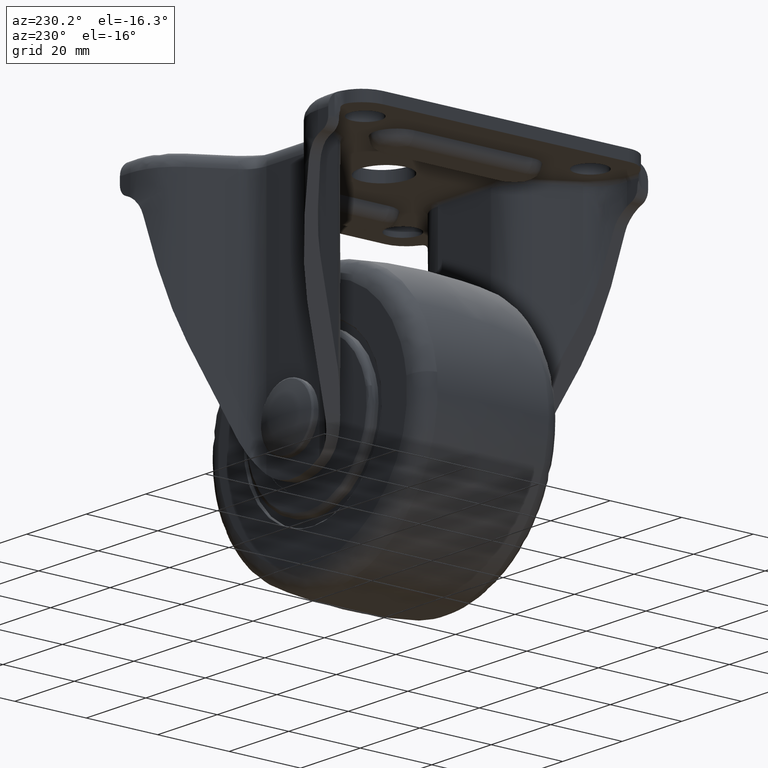
[diagram: clean part render]
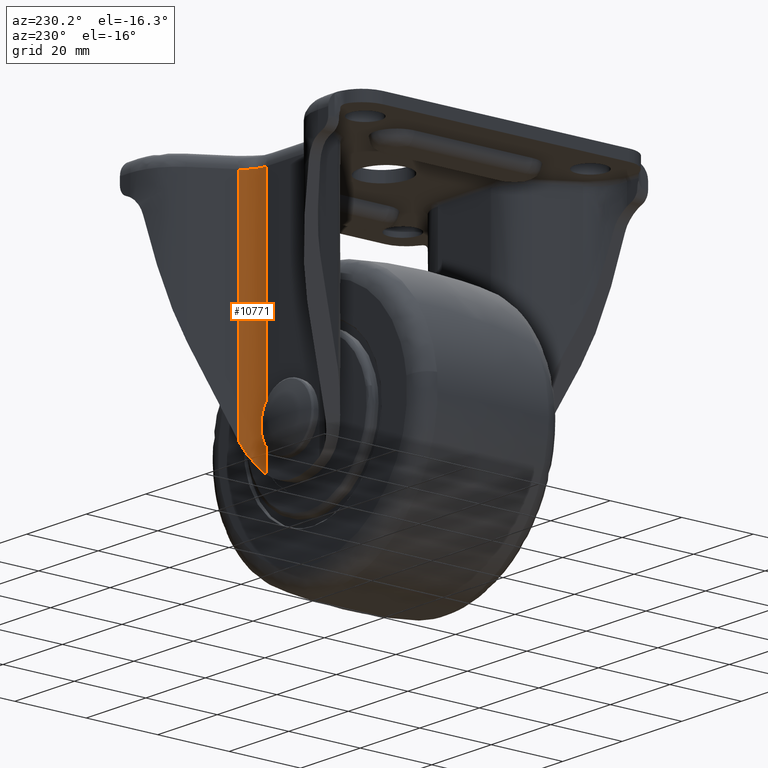
[diagram: same view with one face highlighted and labeled with its STEP entity id]
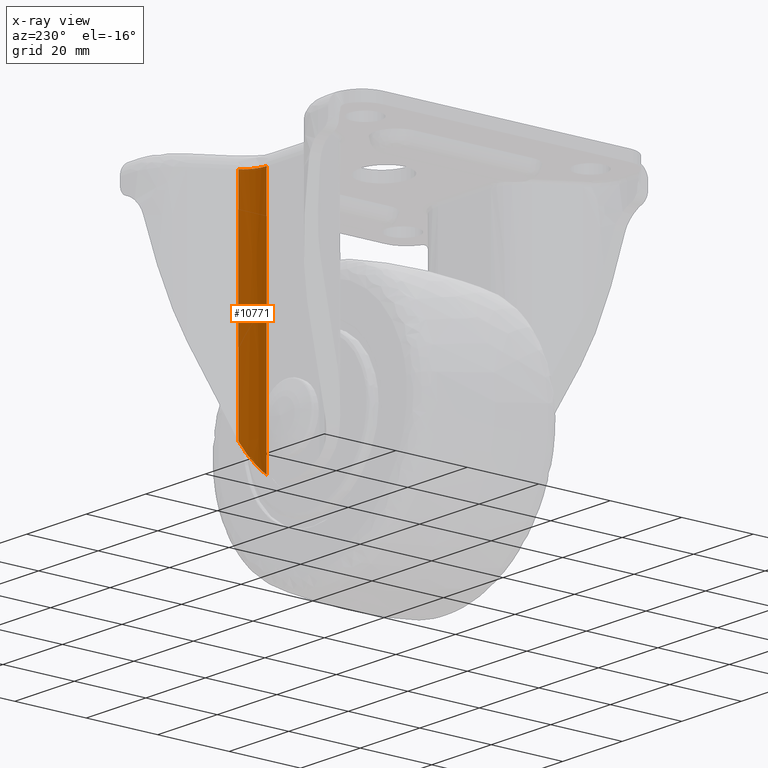
[diagram: x-ray of the same camera — body ghosted, the highlighted face saturated]
A machine part, auxiliary view. The second image highlights one B-rep face of the part: STEP entity #10771.
The next image is the same camera in x-ray: the body ghosted, the highlighted face saturated — about 0% of this face is hidden behind the body in this view.
In plain terms, the highlighted face is a freeform B-spline surface patch.
Its self-contained STEP definition (entity closure, byte-faithful):
#8268=CARTESIAN_POINT('',(8.881149699124080,25.499996999999698,-10.588224849900520));
#8269=VERTEX_POINT('',#8268);
#8283=CARTESIAN_POINT('',(14.468953329208979,28.679387027176851,-2.455930934328065));
#8284=VERTEX_POINT('',#8283);
#8285=CARTESIAN_POINT('',(14.468953329208979,28.679387027176851,-2.455930934328065));
#8286=CARTESIAN_POINT('',(14.361571870098510,28.498689350565591,-2.848682310953326));
#8287=CARTESIAN_POINT('',(14.239604177776190,28.313596535274190,-3.232270892460334));
#8288=CARTESIAN_POINT('',(13.966505840839149,27.945155979930469,-3.986112424766233));
#8289=CARTESIAN_POINT('',(13.815368792396990,27.761681509274190,-4.356302296844521));
#8290=CARTESIAN_POINT('',(13.482862528230580,27.402815766049969,-5.085826410314732));
#8291=CARTESIAN_POINT('',(13.301498736356219,27.227363533064569,-5.445134438973215));
#8292=CARTESIAN_POINT('',(12.906429679877220,26.889748777338070,-6.154334322923348));
#8293=CARTESIAN_POINT('',(12.692740313840360,26.727543394799699,-6.504213617190539));
#8294=CARTESIAN_POINT('',(12.345350578426180,26.498310006346031,-7.022651710107974));
#8295=CARTESIAN_POINT('',(12.225066053924641,26.424250222012422,-7.194397739688919));
#8296=CARTESIAN_POINT('',(12.037443387082760,26.317304650823381,-7.450483490988723));
#8297=CARTESIAN_POINT('',(11.973759532924561,26.282385042691619,-7.535505284283287));
#8298=CARTESIAN_POINT('',(11.844653735325871,26.214414409984471,-7.704099683556449));
#8299=CARTESIAN_POINT('',(11.779151826046929,26.181317128915769,-7.787782314521260));
#8300=CARTESIAN_POINT('',(11.446841408475180,26.020494146963831,-8.203139222805600));
#8301=CARTESIAN_POINT('',(11.165680599901840,25.906673590183662,-8.525665608786760));
#8302=CARTESIAN_POINT('',(10.570551278628530,25.715604116324432,-9.151283482478485));
#8303=CARTESIAN_POINT('',(10.256606964046250,25.638282060621229,-9.454375066838042));
#8304=CARTESIAN_POINT('',(9.758251982566236,25.557247858618691,-9.894103656045800));
#8305=CARTESIAN_POINT('',(9.587234910241836,25.536103415807439,-10.038408305440161));
#8306=CARTESIAN_POINT('',(9.239255811401733,25.507521616490681,-10.318887066838810));
#8307=CARTESIAN_POINT('',(9.061912069138309,25.499996999999649,-10.455419769915760));
#8308=CARTESIAN_POINT('',(8.881149699124078,25.499996999999649,-10.588224849900520));
#8309=B_SPLINE_CURVE_WITH_KNOTS('',3,(#8285,#8286,#8287,#8288,#8289,#8290,#8291,#8292,#8293,#8294,#8295,#8296,#8297,#8298,#8299,#8300,#8301,#8302,#8303,#8304,#8305,#8306,#8307,#8308),.UNSPECIFIED.,.F.,.U.,(4,2,2,2,2,2,2,2,2,2,2,4),(0.0,0.125000000000000,0.249999999999999,0.374999999999999,0.499999999999999,0.562499999999999,0.593749999999999,0.624999999999999,0.749999999999999,0.875000000000000,0.937500000000000,1.0),.UNSPECIFIED.);
#8310=EDGE_CURVE('',#8284,#8269,#8309,.T.);
#10712=CARTESIAN_POINT('',(8.881149699124080,25.499996999999649,58.500000000000000));
#10713=VERTEX_POINT('',#10712);
#10719=CARTESIAN_POINT('',(8.881149699124080,25.499996999999698,-10.588224849900520));
#10720=CARTESIAN_POINT('',(8.881149699124080,25.499996999999649,58.500000000000000));
#10721=QUASI_UNIFORM_CURVE('',1,(#10719,#10720),.UNSPECIFIED.,.F.,.U.);
#10722=EDGE_CURVE('',#8269,#10713,#10721,.T.);
#10736=CARTESIAN_POINT('',(14.497717983572810,28.728275632565580,-12.315430471148030));
#10737=CARTESIAN_POINT('',(14.497717983572810,28.728275632565580,60.270385761778691));
#10738=CARTESIAN_POINT('',(12.508133298439198,25.312753041621264,-12.315430471148034));
#10739=CARTESIAN_POINT('',(12.508133298439198,25.312753041621264,60.270385761778691));
#10740=CARTESIAN_POINT('',(8.560203519959865,25.507925408428903,-12.315430471148032));
#10741=CARTESIAN_POINT('',(8.560203519959865,25.507925408428903,60.270385761778691));
#10749=(BOUNDED_SURFACE()B_SPLINE_SURFACE(1,2,((#10736,#10738,#10740),(#10737,#10739,#10741)),.UNSPECIFIED.,.F.,.F.,.U.)B_SPLINE_SURFACE_WITH_KNOTS((2,2),(3,3),(0.0,72.585816232926732),(0.0,7.284877984368138),.UNSPECIFIED.)GEOMETRIC_REPRESENTATION_ITEM()RATIONAL_B_SPLINE_SURFACE(((1.0,0.853601877455077,0.998089126636252),(1.0,0.853601877455077,0.998089126636252)))REPRESENTATION_ITEM('')SURFACE());
#10750=ORIENTED_EDGE('',*,*,#10722,.T.);
#10751=CARTESIAN_POINT('',(14.468953329208899,28.679387027176698,58.500000000000000));
#10752=VERTEX_POINT('',#10751);
#10753=CARTESIAN_POINT('',(8.881149699124080,25.499996999999649,58.500000000000000));
#10754=CARTESIAN_POINT('',(9.476613146682483,25.499785082319530,58.500000000000057));
#10755=CARTESIAN_POINT('',(10.492235636943169,25.640602190025142,58.499999999999801));
#10756=CARTESIAN_POINT('',(11.869233734716230,26.177607514243419,58.500000000000199));
#10757=CARTESIAN_POINT('',(13.259588442925841,27.076087022435569,58.499999999999751));
#10758=CARTESIAN_POINT('',(14.075710478979881,28.016614986928289,58.500000000000462));
#10759=CARTESIAN_POINT('',(14.468953329208899,28.679387027176698,58.500000000000000));
#10760=B_SPLINE_CURVE_WITH_KNOTS('',3,(#10753,#10754,#10755,#10756,#10757,#10758,#10759),.UNSPECIFIED.,.F.,.U.,(4,1,1,1,4),(0.000000138068311,1.786337331824631,3.047290153273117,4.413288355624284,6.725024363034295),.UNSPECIFIED.);
#10761=EDGE_CURVE('',#10713,#10752,#10760,.T.);
#10762=ORIENTED_EDGE('',*,*,#10761,.T.);
#10763=CARTESIAN_POINT('',(14.468953329208979,28.679387027176851,-2.455930934328065));
#10764=CARTESIAN_POINT('',(14.468953329208899,28.679387027176698,58.500000000000000));
#10765=QUASI_UNIFORM_CURVE('',1,(#10763,#10764),.UNSPECIFIED.,.F.,.U.);
#10766=EDGE_CURVE('',#8284,#10752,#10765,.T.);
#10767=ORIENTED_EDGE('',*,*,#10766,.F.);
#10768=ORIENTED_EDGE('',*,*,#8310,.T.);
#10769=EDGE_LOOP('',(#10750,#10762,#10767,#10768));
#10770=FACE_OUTER_BOUND('',#10769,.T.);
#10771=ADVANCED_FACE('',(#10770),#10749,.F.);